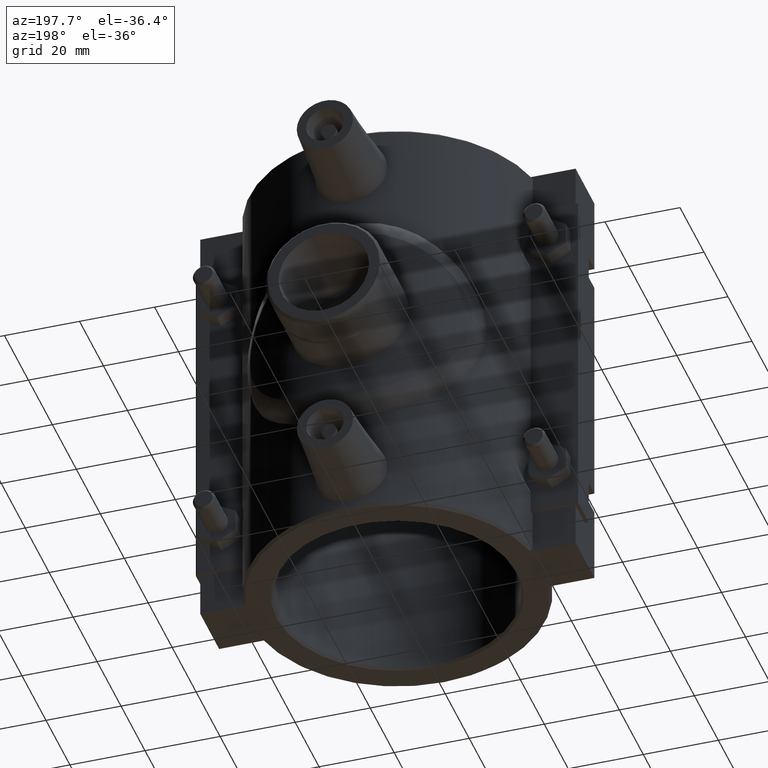
[diagram: clean part render]
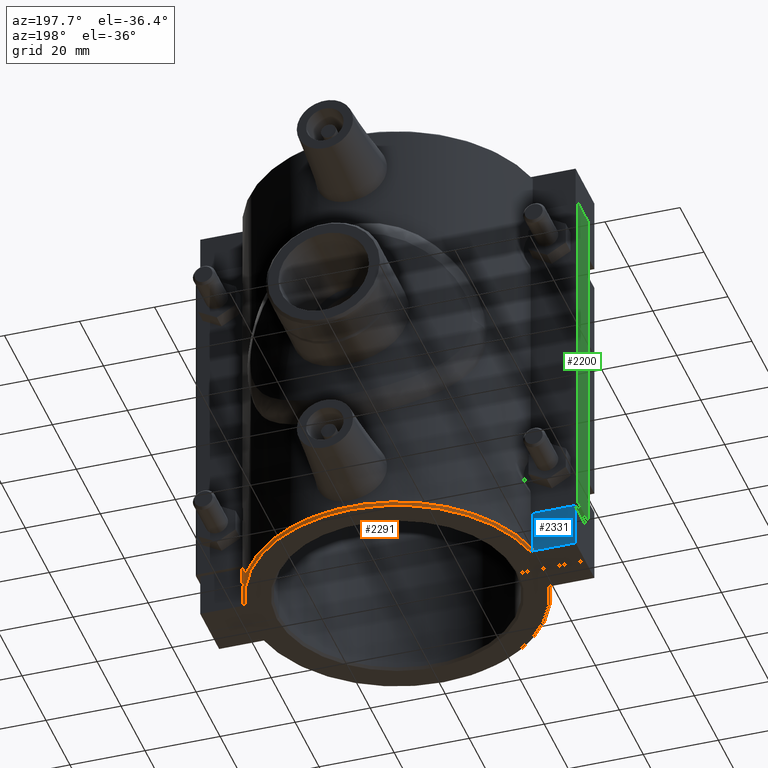
[diagram: same view with three faces highlighted in distinct colors, each labeled with its STEP entity id]
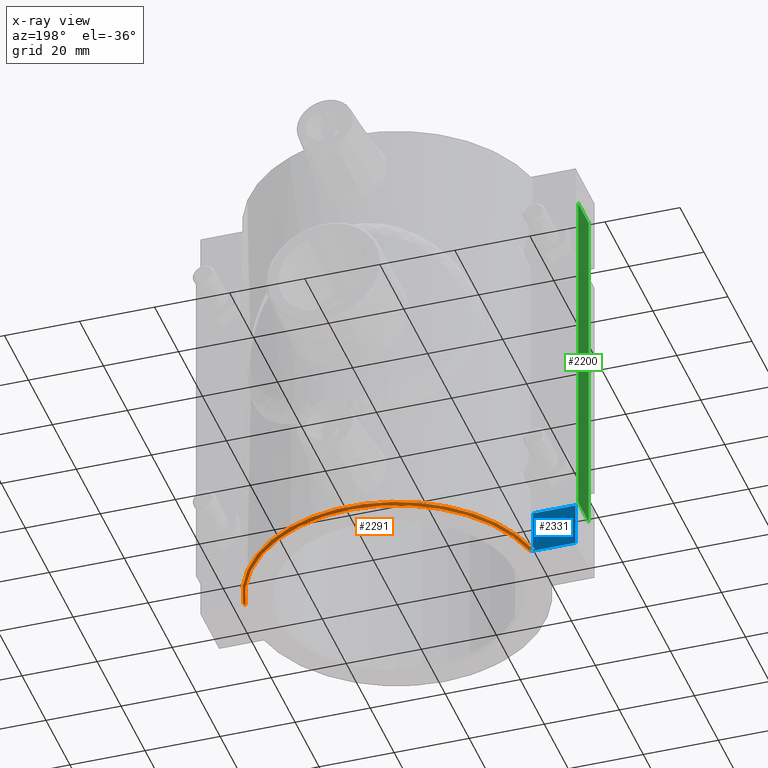
[diagram: x-ray of the same camera — body ghosted, the three highlighted faces saturated]
A machine part, auxiliary view with three faces highlighted in distinct colors.
The next image is the same camera in x-ray (body ghosted, the three faces saturated) — at least one of them is partly hidden behind the body in this view.
Their STEP definitions:

[orange] entity #2291 — the highlighted conical surface has half-angle 45 deg.
#28=CONICAL_SURFACE('',#2478,39.06,45.0000000000002);
#49=(
BOUNDED_CURVE()
B_SPLINE_CURVE(2,(#4196,#4197,#4198),.UNSPECIFIED.,.F.,.F.)
B_SPLINE_CURVE_WITH_KNOTS((3,3),(0.,0.090034318503411),.UNSPECIFIED.)
CURVE()
GEOMETRIC_REPRESENTATION_ITEM()
RATIONAL_B_SPLINE_CURVE((1.,1.00003389760153,1.))
REPRESENTATION_ITEM('')
);
#50=(
BOUNDED_CURVE()
B_SPLINE_CURVE(2,(#4200,#4201,#4202),.UNSPECIFIED.,.F.,.F.)
B_SPLINE_CURVE_WITH_KNOTS((3,3),(0.,0.0900343185034107),.UNSPECIFIED.)
CURVE()
GEOMETRIC_REPRESENTATION_ITEM()
RATIONAL_B_SPLINE_CURVE((1.,1.00003389763031,1.))
REPRESENTATION_ITEM('')
);
#260=FACE_OUTER_BOUND('',#431,.T.);
#431=EDGE_LOOP('',(#1937,#1938,#1939,#1940));
#898=CIRCLE('',#2411,39.375);
#927=CIRCLE('',#2479,38.745);
#1063=VERTEX_POINT('',#3765);
#1064=VERTEX_POINT('',#3767);
#1130=VERTEX_POINT('',#4195);
#1131=VERTEX_POINT('',#4199);
#1318=EDGE_CURVE('',#1064,#1063,#898,.T.);
#1418=EDGE_CURVE('',#1130,#1064,#49,.F.);
#1419=EDGE_CURVE('',#1063,#1131,#50,.F.);
#1420=EDGE_CURVE('',#1131,#1130,#927,.T.);
#1937=ORIENTED_EDGE('',*,*,#1418,.T.);
#1938=ORIENTED_EDGE('',*,*,#1318,.T.);
#1939=ORIENTED_EDGE('',*,*,#1419,.T.);
#1940=ORIENTED_EDGE('',*,*,#1420,.T.);
#2291=ADVANCED_FACE('',(#260),#28,.T.);
#2411=AXIS2_PLACEMENT_3D('',#3768,#2801,#2802);
#2478=AXIS2_PLACEMENT_3D('',#4194,#2988,#2989);
#2479=AXIS2_PLACEMENT_3D('',#4203,#2990,#2991);
#2801=DIRECTION('center_axis',(0.,0.,-1.));
#2802=DIRECTION('ref_axis',(1.,0.,0.));
#2988=DIRECTION('center_axis',(0.,0.,1.));
#2989=DIRECTION('ref_axis',(1.,0.,0.));
#2990=DIRECTION('center_axis',(0.,0.,1.));
#2991=DIRECTION('ref_axis',(1.,0.,0.));
#3765=CARTESIAN_POINT('',(38.5794634488351,7.87499999999999,-58.37));
#3767=CARTESIAN_POINT('',(-38.5794634488351,7.875,-58.37));
#3768=CARTESIAN_POINT('Origin',(0.,0.,-58.37));
#4194=CARTESIAN_POINT('Origin',(0.,0.,-58.685));
#4195=CARTESIAN_POINT('',(-37.936254427658,7.87499999999999,-59.));
#4196=CARTESIAN_POINT('Ctrl Pts',(-38.5794634488351,7.875,-58.37));
#4197=CARTESIAN_POINT('Ctrl Pts',(-38.2552653535105,7.875,-58.6876479636509));
#4198=CARTESIAN_POINT('Ctrl Pts',(-37.936254427658,7.875,-59.));
#4199=CARTESIAN_POINT('',(37.936254427658,7.87499999999998,-59.));
#4200=CARTESIAN_POINT('Ctrl Pts',(37.936254427658,7.87499999999999,-59.));
#4201=CARTESIAN_POINT('Ctrl Pts',(38.2552653535041,7.87499999999999,-58.6876479636572));
#4202=CARTESIAN_POINT('Ctrl Pts',(38.5794634488351,7.87499999999999,-58.37));
#4203=CARTESIAN_POINT('Origin',(0.,0.,-59.));

[blue] entity #2331 — the highlighted planar face has unit normal (0, 1, 0).
#49=(
BOUNDED_CURVE()
B_SPLINE_CURVE(2,(#4196,#4197,#4198),.UNSPECIFIED.,.F.,.F.)
B_SPLINE_CURVE_WITH_KNOTS((3,3),(0.,0.090034318503411),.UNSPECIFIED.)
CURVE()
GEOMETRIC_REPRESENTATION_ITEM()
RATIONAL_B_SPLINE_CURVE((1.,1.00003389760153,1.))
REPRESENTATION_ITEM('')
);
#300=FACE_OUTER_BOUND('',#488,.T.);
#488=EDGE_LOOP('',(#2085,#2086,#2087,#2088,#2089));
#493=LINE('',#3161,#684);
#523=LINE('',#3270,#714);
#600=LINE('',#3769,#791);
#680=LINE('',#4667,#871);
#684=VECTOR('',#2552,11.4205365511649);
#714=VECTOR('',#2600,11.8);
#791=VECTOR('',#2803,11.17);
#871=VECTOR('',#3143,12.063745572342);
#953=VERTEX_POINT('',#3157);
#955=VERTEX_POINT('',#3160);
#987=VERTEX_POINT('',#3269);
#1064=VERTEX_POINT('',#3767);
#1130=VERTEX_POINT('',#4195);
#1170=EDGE_CURVE('',#955,#953,#493,.T.);
#1208=EDGE_CURVE('',#987,#955,#523,.T.);
#1319=EDGE_CURVE('',#953,#1064,#600,.T.);
#1418=EDGE_CURVE('',#1130,#1064,#49,.F.);
#1479=EDGE_CURVE('',#987,#1130,#680,.T.);
#2085=ORIENTED_EDGE('',*,*,#1170,.T.);
#2086=ORIENTED_EDGE('',*,*,#1319,.T.);
#2087=ORIENTED_EDGE('',*,*,#1418,.F.);
#2088=ORIENTED_EDGE('',*,*,#1479,.F.);
#2089=ORIENTED_EDGE('',*,*,#1208,.T.);
#2192=PLANE('',#2541);
#2331=ADVANCED_FACE('',(#300),#2192,.T.);
#2541=AXIS2_PLACEMENT_3D('',#4666,#3141,#3142);
#2552=DIRECTION('',(1.,0.,0.));
#2600=DIRECTION('',(0.,0.,1.));
#2803=DIRECTION('',(0.,0.,-1.));
#3141=DIRECTION('center_axis',(0.,1.,0.));
#3142=DIRECTION('ref_axis',(-1.,0.,0.));
#3143=DIRECTION('',(1.,0.,0.));
#3157=CARTESIAN_POINT('',(-38.5794634488351,7.87499999999999,-47.2));
#3160=CARTESIAN_POINT('',(-50.,7.87499999999999,-47.2));
#3161=CARTESIAN_POINT('',(-41.5647114035952,7.875,-47.2));
#3269=CARTESIAN_POINT('',(-50.,7.875,-59.));
#3270=CARTESIAN_POINT('',(-50.,7.875,0.));
#3767=CARTESIAN_POINT('',(-38.5794634488351,7.875,-58.37));
#3769=CARTESIAN_POINT('',(-38.5794634488351,7.875,0.));
#4195=CARTESIAN_POINT('',(-37.936254427658,7.87499999999999,-59.));
#4196=CARTESIAN_POINT('Ctrl Pts',(-38.5794634488351,7.875,-58.37));
#4197=CARTESIAN_POINT('Ctrl Pts',(-38.2552653535105,7.875,-58.6876479636509));
#4198=CARTESIAN_POINT('Ctrl Pts',(-37.936254427658,7.875,-59.));
#4666=CARTESIAN_POINT('Origin',(-38.5794634488351,7.875,0.));
#4667=CARTESIAN_POINT('',(-38.5794634488351,7.875,-59.));

[green] entity #2200 — the highlighted planar face has unit normal (1, 0, 0).
#169=FACE_OUTER_BOUND('',#310,.T.);
#310=EDGE_LOOP('',(#1519,#1520,#1521,#1522));
#496=LINE('',#3167,#687);
#499=LINE('',#3176,#690);
#504=LINE('',#3185,#695);
#519=LINE('',#3250,#710);
#687=VECTOR('',#2555,8.82499999999999);
#690=VECTOR('',#2562,8.82499999999999);
#695=VECTOR('',#2569,94.4);
#710=VECTOR('',#2590,94.4);
#957=VERTEX_POINT('',#3164);
#958=VERTEX_POINT('',#3166);
#961=VERTEX_POINT('',#3173);
#962=VERTEX_POINT('',#3175);
#1173=EDGE_CURVE('',#958,#957,#496,.T.);
#1177=EDGE_CURVE('',#962,#961,#499,.T.);
#1182=EDGE_CURVE('',#958,#961,#504,.T.);
#1203=EDGE_CURVE('',#957,#962,#519,.T.);
#1519=ORIENTED_EDGE('',*,*,#1182,.F.);
#1520=ORIENTED_EDGE('',*,*,#1173,.T.);
#1521=ORIENTED_EDGE('',*,*,#1203,.T.);
#1522=ORIENTED_EDGE('',*,*,#1177,.T.);
#2118=PLANE('',#2345);
#2200=ADVANCED_FACE('',(#169),#2118,.F.);
#2345=AXIS2_PLACEMENT_3D('',#3249,#2588,#2589);
#2555=DIRECTION('',(0.,-1.,0.));
#2562=DIRECTION('',(0.,1.,0.));
#2569=DIRECTION('',(0.,0.,1.));
#2588=DIRECTION('center_axis',(1.,0.,0.));
#2589=DIRECTION('ref_axis',(0.,1.,0.));
#2590=DIRECTION('',(0.,0.,1.));
#3164=CARTESIAN_POINT('',(-51.,0.05,-47.2));
#3166=CARTESIAN_POINT('',(-51.,8.87499999999999,-47.2));
#3167=CARTESIAN_POINT('',(-51.,0.05,-47.2));
#3173=CARTESIAN_POINT('',(-51.,8.87499999999999,47.2));
#3175=CARTESIAN_POINT('',(-51.,0.05,47.2));
#3176=CARTESIAN_POINT('',(-51.,0.05,47.2));
#3185=CARTESIAN_POINT('',(-51.,8.87499999999999,0.));
#3249=CARTESIAN_POINT('Origin',(-51.,0.0500000000000002,0.));
#3250=CARTESIAN_POINT('',(-51.,0.0500000000000002,0.));